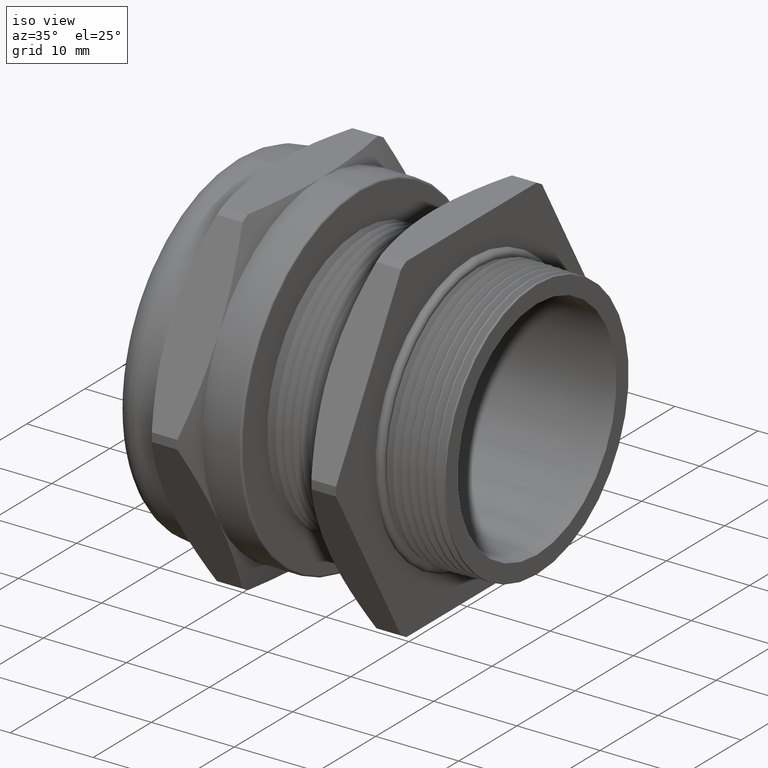
[diagram: clean part render]
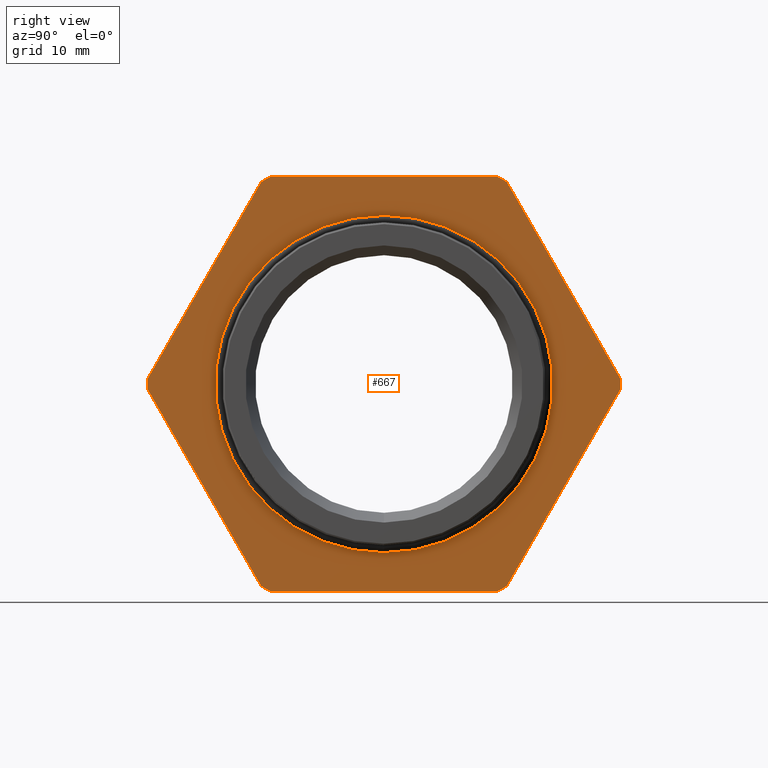
[diagram: tour spotlight — one face highlighted and labeled with its STEP entity id]
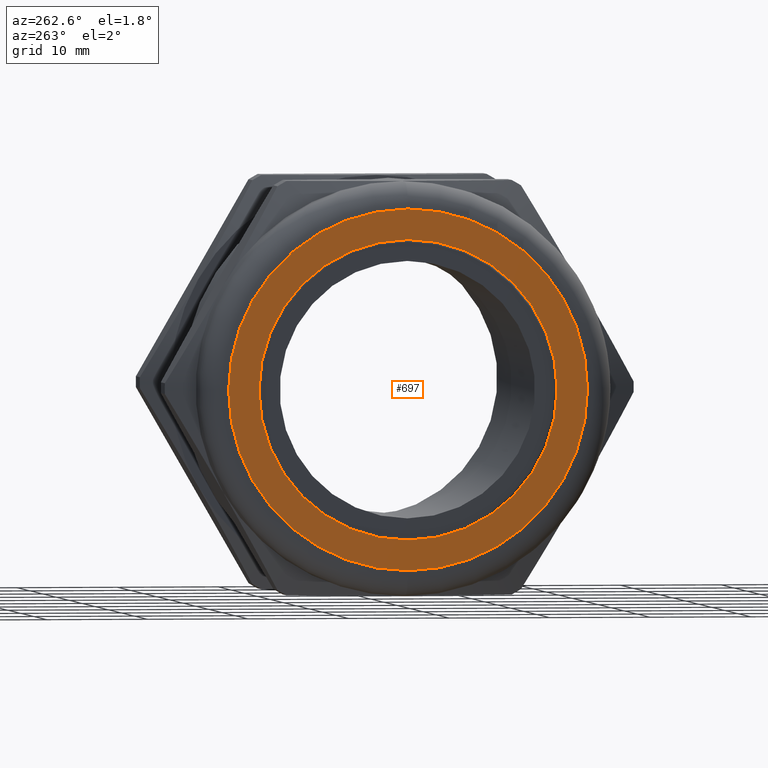
[diagram: tour spotlight — one face highlighted and labeled with its STEP entity id]
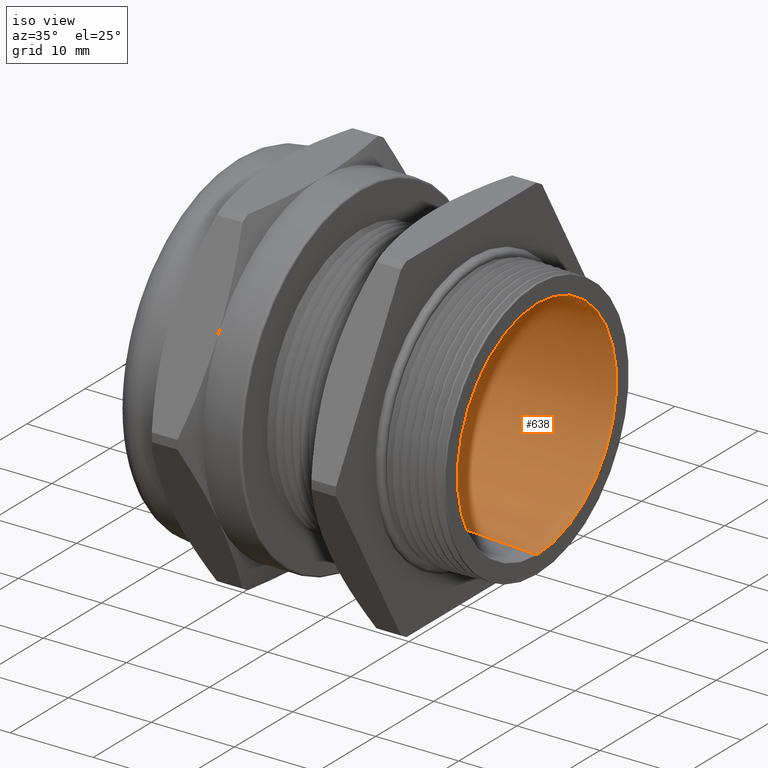
[diagram: tour spotlight — one face highlighted and labeled with its STEP entity id]
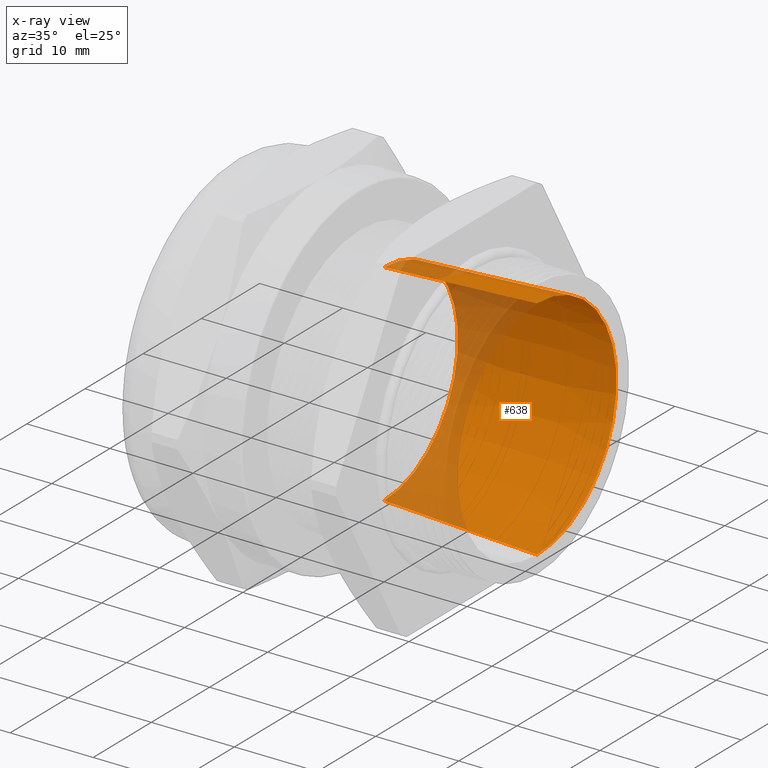
[diagram: x-ray of the same camera — body ghosted, this tour face saturated]
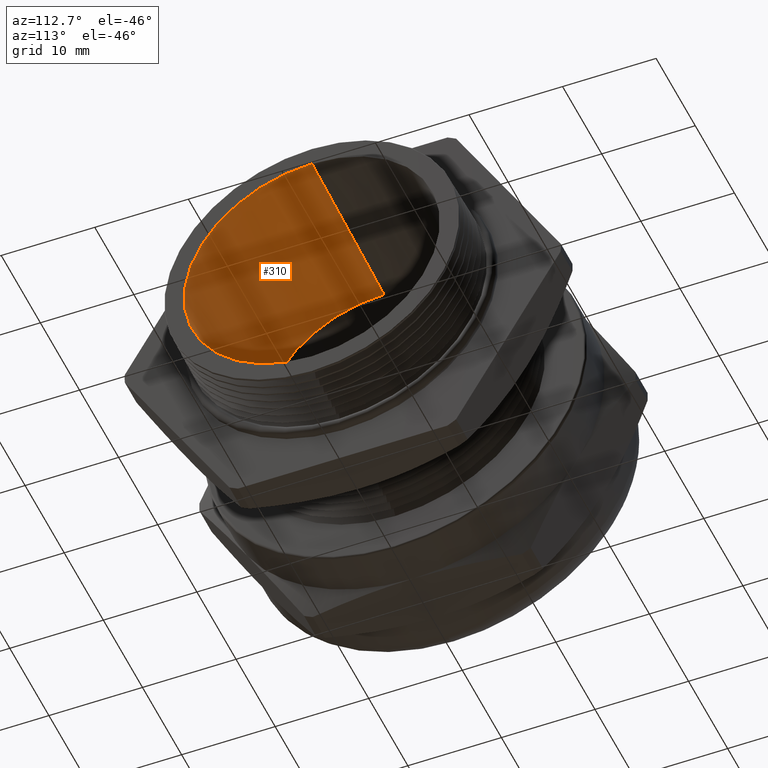
[diagram: tour spotlight — one face highlighted and labeled with its STEP entity id]
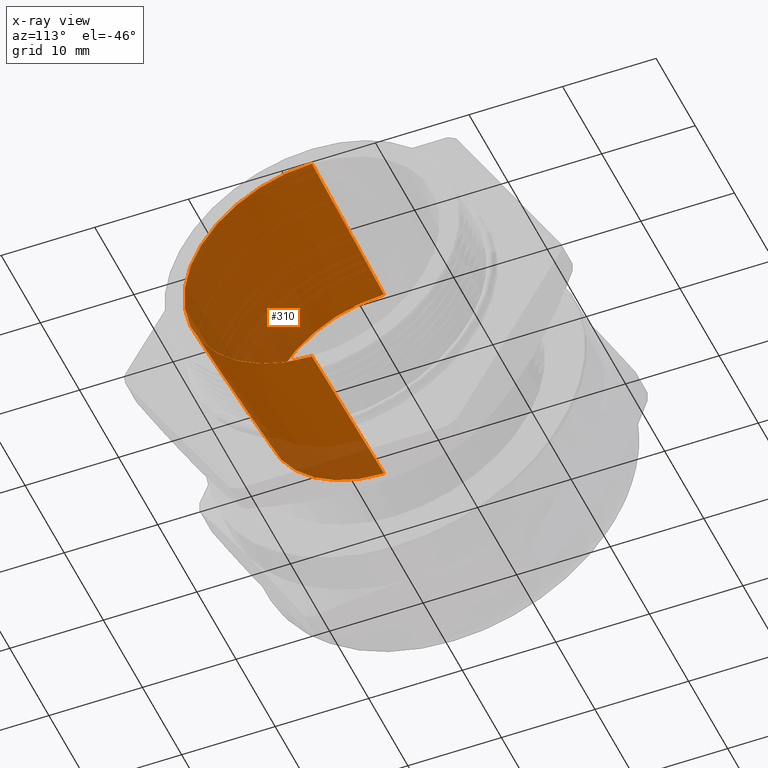
[diagram: x-ray of the same camera — body ghosted, this tour face saturated]
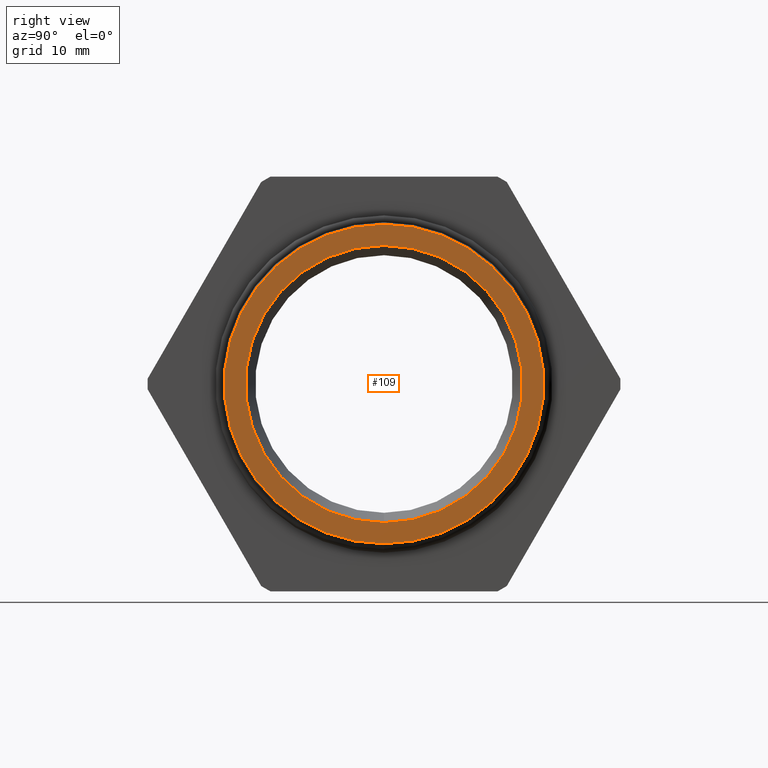
[diagram: tour spotlight — one face highlighted and labeled with its STEP entity id]
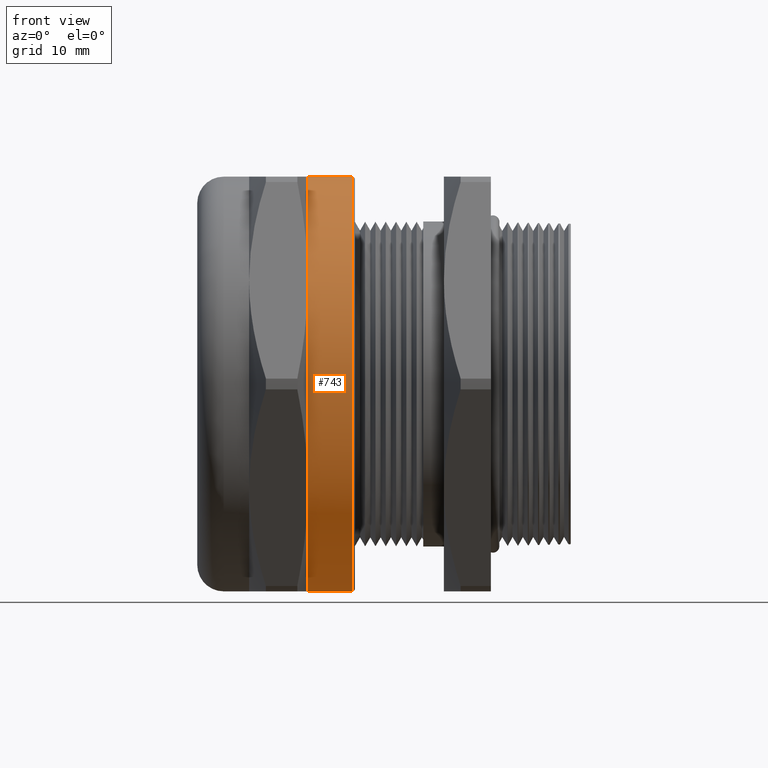
[diagram: tour spotlight — one face highlighted and labeled with its STEP entity id]
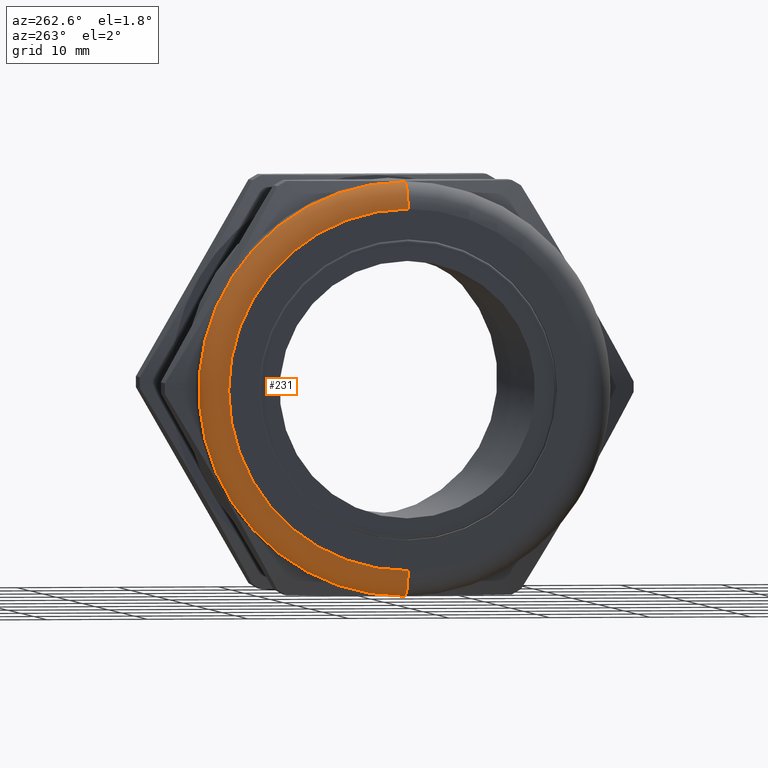
[diagram: tour spotlight — one face highlighted and labeled with its STEP entity id]
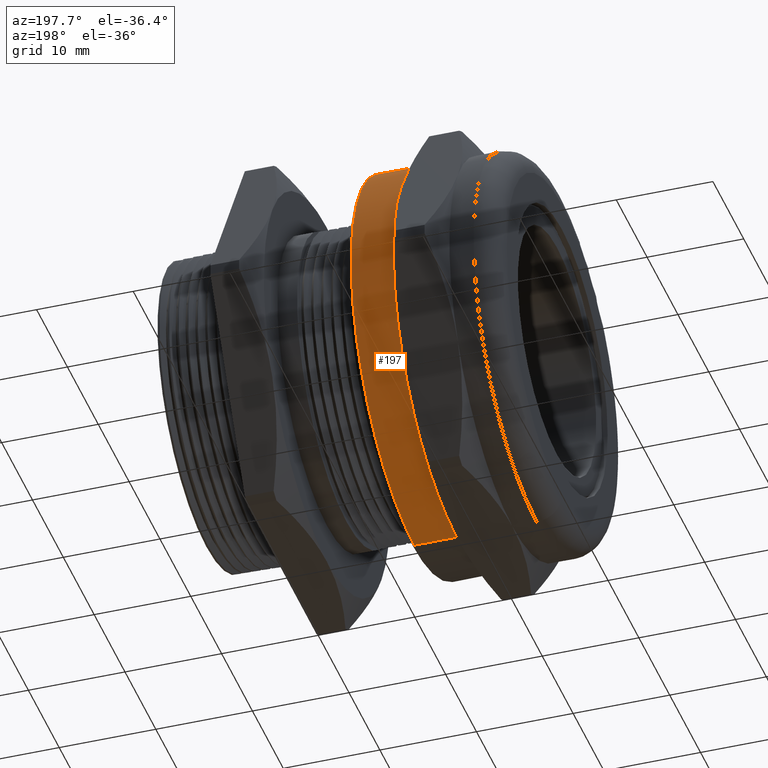
[diagram: tour spotlight — one face highlighted and labeled with its STEP entity id]
A machine part: a face-by-face anatomy tour. The part has 152 B-rep faces; the first image is the clean iso view, then the 8 largest visible faces are spotlighted one at a time (largest first), each with its STEP entity span.

Face 1 — right view, entity #667. In plain terms, the highlighted planar face has unit normal (-1, 0, 0).
Definition (entity closure, byte-faithful):
#5 = EDGE_CURVE ( 'NONE', #4247, #4260, #1312, .T. ) ;
#18 = EDGE_CURVE ( 'NONE', #4231, #285, #1329, .T. ) ;
#33 = EDGE_CURVE ( 'NONE', #4246, #4230, #1405, .T. ) ;
#45 = EDGE_CURVE ( 'NONE', #4215, #4221, #1423, .T. ) ;
#51 = EDGE_CURVE ( 'NONE', #4232, #4244, #1460, .T. ) ;
#285 = VERTEX_POINT ( 'NONE', #1928 ) ;
#290 = EDGE_CURVE ( 'NONE', #4267, #4210, #1915, .T. ) ;
#637 = ORIENTED_EDGE ( 'NONE', *, *, #4213, .F. ) ;
#649 = ORIENTED_EDGE ( 'NONE', *, *, #4229, .F. ) ;
#650 = ORIENTED_EDGE ( 'NONE', *, *, #51, .T. ) ;
#651 = ORIENTED_EDGE ( 'NONE', *, *, #4248, .F. ) ;
#652 = ORIENTED_EDGE ( 'NONE', *, *, #33, .T. ) ;
#653 = ORIENTED_EDGE ( 'NONE', *, *, #4261, .F. ) ;
#654 = ORIENTED_EDGE ( 'NONE', *, *, #18, .T. ) ;
#655 = ORIENTED_EDGE ( 'NONE', *, *, #4250, .F. ) ;
#657 = ORIENTED_EDGE ( 'NONE', *, *, #5, .T. ) ;
#658 = ORIENTED_EDGE ( 'NONE', *, *, #4264, .F. ) ;
#659 = ORIENTED_EDGE ( 'NONE', *, *, #290, .T. ) ;
#667 = ADVANCED_FACE ( 'NONE', ( #2729, #2731 ), #2719, .F. ) ;
#668 = EDGE_LOOP ( 'NONE', ( #669, #671 ) ) ;
#669 = ORIENTED_EDGE ( 'NONE', *, *, #670, .T. ) ;
#670 = EDGE_CURVE ( 'NONE', #1206, #1146, #2714, .T. ) ;
#671 = ORIENTED_EDGE ( 'NONE', *, *, #1205, .T. ) ;
#672 = EDGE_LOOP ( 'NONE', ( #673, #649, #650, #651, #652, #653, #654, #655, #657, #658, #659, #637 ) ) ;
#673 = ORIENTED_EDGE ( 'NONE', *, *, #45, .T. ) ;
#1146 = VERTEX_POINT ( 'NONE', #3404 ) ;
#1205 = EDGE_CURVE ( 'NONE', #1146, #1206, #3486, .T. ) ;
#1206 = VERTEX_POINT ( 'NONE', #3481 ) ;
#1303 = DIRECTION ( 'NONE',  ( 0.0000000000000000000, -0.5000000000000000000, 0.8660254037844386000 ) ) ;
#1304 = VECTOR ( 'NONE', #1303, 39.37007874015748900 ) ;
#1311 = CARTESIAN_POINT ( 'NONE',  ( 0.4149999999999998700, 0.9174617581992775600, 0.02090962079737901700 ) ) ;
#1312 = LINE ( 'NONE', #1311, #1304 ) ;
#1322 = DIRECTION ( 'NONE',  ( 0.0000000000000000000, 0.5000000000000000000, 0.8660254037844386000 ) ) ;
#1323 = VECTOR ( 'NONE', #1322, 39.37007874015748900 ) ;
#1324 = CARTESIAN_POINT ( 'NONE',  ( 0.4149999999999998700, 0.4768391418936687200, -0.7840903792026208100 ) ) ;
#1329 = LINE ( 'NONE', #1324, #1323 ) ;
#1396 = DIRECTION ( 'NONE',  ( 0.0000000000000000000, 1.000000000000000000, 0.0000000000000000000 ) ) ;
#1397 = VECTOR ( 'NONE', #1396, 39.37007874015748100 ) ;
#1404 = CARTESIAN_POINT ( 'NONE',  ( 0.4149999999999998700, -0.4406226163056090600, -0.8050000000000000500 ) ) ;
#1405 = LINE ( 'NONE', #1404, #1397 ) ;
#1412 = VECTOR ( 'NONE', #1421, 39.37007874015748900 ) ;
#1421 = DIRECTION ( 'NONE',  ( 0.0000000000000000000, -0.5000000000000001100, -0.8660254037844386000 ) ) ;
#1422 = CARTESIAN_POINT ( 'NONE',  ( 0.4149999999999998700, -0.4768391418936684400, 0.7840903792026209200 ) ) ;
#1423 = LINE ( 'NONE', #1422, #1412 ) ;
#1457 = DIRECTION ( 'NONE',  ( 0.0000000000000000000, 0.5000000000000001100, -0.8660254037844386000 ) ) ;
#1458 = VECTOR ( 'NONE', #1457, 39.37007874015748900 ) ;
#1459 = CARTESIAN_POINT ( 'NONE',  ( 0.4149999999999998700, -0.9174617581992775600, -0.02090962079737935700 ) ) ;
#1460 = LINE ( 'NONE', #1459, #1458 ) ;
#1912 = DIRECTION ( 'NONE',  ( 0.0000000000000000000, -1.000000000000000000, 0.0000000000000000000 ) ) ;
#1913 = VECTOR ( 'NONE', #1912, 39.37007874015748100 ) ;
#1914 = CARTESIAN_POINT ( 'NONE',  ( 0.4149999999999998700, 0.4406226163056091200, 0.8050000000000000500 ) ) ;
#1915 = LINE ( 'NONE', #1914, #1913 ) ;
#1928 = CARTESIAN_POINT ( 'NONE',  ( 0.4149999999999998100, 0.9174617581992775600, -0.02090962079737942700 ) ) ;
#2711 = DIRECTION ( 'NONE',  ( 0.0000000000000000000, 0.0000000000000000000, 1.000000000000000000 ) ) ;
#2712 = DIRECTION ( 'NONE',  ( -1.000000000000000000, 0.0000000000000000000, 0.0000000000000000000 ) ) ;
#2713 = AXIS2_PLACEMENT_3D ( 'NONE', #2720, #2712, #2711 ) ;
#2714 = CIRCLE ( 'NONE', #2713, 0.6534759511921007800 ) ;
#2715 = DIRECTION ( 'NONE',  ( 0.0000000000000000000, 0.0000000000000000000, 1.000000000000000000 ) ) ;
#2716 = DIRECTION ( 'NONE',  ( -1.000000000000000000, 0.0000000000000000000, 0.0000000000000000000 ) ) ;
#2717 = CARTESIAN_POINT ( 'NONE',  ( 0.4149999999999998700, 0.9177000000000000700, 0.0000000000000000000 ) ) ;
#2718 = AXIS2_PLACEMENT_3D ( 'NONE', #2717, #2716, #2715 ) ;
#2719 = PLANE ( 'NONE',  #2718 ) ;
#2720 = CARTESIAN_POINT ( 'NONE',  ( 0.4149999999999998700, 0.0000000000000000000, 0.0000000000000000000 ) ) ;
#2729 = FACE_BOUND ( 'NONE', #668, .T. ) ;
#2731 = FACE_OUTER_BOUND ( 'NONE', #672, .T. ) ;
#3404 = CARTESIAN_POINT ( 'NONE',  ( 0.4149999999999998700, 8.002772319471780800E-017, 0.6534759511921007800 ) ) ;
#3481 = CARTESIAN_POINT ( 'NONE',  ( 0.4149999999999998700, 0.0000000000000000000, -0.6534759511921007800 ) ) ;
#3482 = DIRECTION ( 'NONE',  ( 0.0000000000000000000, 0.0000000000000000000, 1.000000000000000000 ) ) ;
#3483 = DIRECTION ( 'NONE',  ( -1.000000000000000000, 0.0000000000000000000, 0.0000000000000000000 ) ) ;
#3484 = CARTESIAN_POINT ( 'NONE',  ( 0.4149999999999998700, 0.0000000000000000000, 0.0000000000000000000 ) ) ;
#3485 = AXIS2_PLACEMENT_3D ( 'NONE', #3484, #3483, #3482 ) ;
#3486 = CIRCLE ( 'NONE', #3485, 0.6534759511921007800 ) ;
#3914 = CARTESIAN_POINT ( 'NONE',  ( 0.4149999999999998700, -0.4768391418936682200, 0.7840903792026209200 ) ) ;
#3915 = DIRECTION ( 'NONE',  ( 0.0000000000000000000, 0.0000000000000000000, 1.000000000000000000 ) ) ;
#3916 = DIRECTION ( 'NONE',  ( -1.000000000000000000, 0.0000000000000000000, 0.0000000000000000000 ) ) ;
#3917 = CARTESIAN_POINT ( 'NONE',  ( 0.4149999999999998100, 0.0000000000000000000, 0.0000000000000000000 ) ) ;
#3918 = AXIS2_PLACEMENT_3D ( 'NONE', #3917, #3916, #3915 ) ;
#3919 = CIRCLE ( 'NONE', #3918, 0.9177000000000000700 ) ;
#3924 = CARTESIAN_POINT ( 'NONE',  ( 0.4149999999999998100, -0.4406226163056091200, 0.8050000000000000500 ) ) ;
#3944 = CARTESIAN_POINT ( 'NONE',  ( 0.4149999999999998700, -0.9174617581992775600, -0.02090962079737928100 ) ) ;
#3945 = CARTESIAN_POINT ( 'NONE',  ( 0.4149999999999998700, 0.4768391418936687200, -0.7840903792026208100 ) ) ;
#3946 = CARTESIAN_POINT ( 'NONE',  ( 0.4149999999999998100, 0.4406226163056090600, -0.8050000000000000500 ) ) ;
#3947 = DIRECTION ( 'NONE',  ( 0.0000000000000000000, 0.0000000000000000000, 1.000000000000000000 ) ) ;
#3948 = DIRECTION ( 'NONE',  ( -1.000000000000000000, 0.0000000000000000000, 0.0000000000000000000 ) ) ;
#3949 = CARTESIAN_POINT ( 'NONE',  ( 0.4149999999999998100, 0.0000000000000000000, 0.0000000000000000000 ) ) ;
#3950 = AXIS2_PLACEMENT_3D ( 'NONE', #3949, #3948, #3947 ) ;
#3951 = CIRCLE ( 'NONE', #3950, 0.9177000000000000700 ) ;
#3962 = CARTESIAN_POINT ( 'NONE',  ( 0.4149999999999998100, -0.9174617581992775600, 0.02090962079737922200 ) ) ;
#3970 = DIRECTION ( 'NONE',  ( 0.0000000000000000000, 0.0000000000000000000, 1.000000000000000000 ) ) ;
#3971 = DIRECTION ( 'NONE',  ( -1.000000000000000000, 0.0000000000000000000, 0.0000000000000000000 ) ) ;
#3972 = CARTESIAN_POINT ( 'NONE',  ( 0.4149999999999998100, 0.0000000000000000000, 0.0000000000000000000 ) ) ;
#3973 = AXIS2_PLACEMENT_3D ( 'NONE', #3972, #3971, #3970 ) ;
#3974 = CIRCLE ( 'NONE', #3973, 0.9177000000000000700 ) ;
#3975 = DIRECTION ( 'NONE',  ( 0.0000000000000000000, 0.0000000000000000000, 1.000000000000000000 ) ) ;
#3976 = DIRECTION ( 'NONE',  ( -1.000000000000000000, 0.0000000000000000000, 0.0000000000000000000 ) ) ;
#3977 = CARTESIAN_POINT ( 'NONE',  ( 0.4149999999999998100, 0.0000000000000000000, 0.0000000000000000000 ) ) ;
#3978 = AXIS2_PLACEMENT_3D ( 'NONE', #3977, #3976, #3975 ) ;
#3979 = CIRCLE ( 'NONE', #3978, 0.9177000000000000700 ) ;
#3980 = CARTESIAN_POINT ( 'NONE',  ( 0.4149999999999998700, 0.9174617581992775600, 0.02090962079737898300 ) ) ;
#3981 = CARTESIAN_POINT ( 'NONE',  ( 0.4149999999999998700, -0.4406226163056092300, -0.8050000000000000500 ) ) ;
#3982 = CARTESIAN_POINT ( 'NONE',  ( 0.4149999999999998100, -0.4768391418936683800, -0.7840903792026210400 ) ) ;
#4003 = AXIS2_PLACEMENT_3D ( 'NONE', #4063, #4062, #4061 ) ;
#4004 = CIRCLE ( 'NONE', #4003, 0.9177000000000000700 ) ;
#4009 = DIRECTION ( 'NONE',  ( 0.0000000000000000000, 0.0000000000000000000, 1.000000000000000000 ) ) ;
#4010 = DIRECTION ( 'NONE',  ( -1.000000000000000000, 0.0000000000000000000, 0.0000000000000000000 ) ) ;
#4011 = CARTESIAN_POINT ( 'NONE',  ( 0.4149999999999998100, 0.0000000000000000000, 0.0000000000000000000 ) ) ;
#4012 = AXIS2_PLACEMENT_3D ( 'NONE', #4011, #4010, #4009 ) ;
#4013 = CIRCLE ( 'NONE', #4012, 0.9177000000000000700 ) ;
#4014 = CARTESIAN_POINT ( 'NONE',  ( 0.4149999999999998100, 0.4768391418936684400, 0.7840903792026209200 ) ) ;
#4056 = CARTESIAN_POINT ( 'NONE',  ( 0.4149999999999998700, 0.4406226163056091200, 0.8050000000000000500 ) ) ;
#4061 = DIRECTION ( 'NONE',  ( 0.0000000000000000000, 0.0000000000000000000, 1.000000000000000000 ) ) ;
#4062 = DIRECTION ( 'NONE',  ( -1.000000000000000000, 0.0000000000000000000, 0.0000000000000000000 ) ) ;
#4063 = CARTESIAN_POINT ( 'NONE',  ( 0.4149999999999998100, 0.0000000000000000000, 0.0000000000000000000 ) ) ;
#4210 = VERTEX_POINT ( 'NONE', #3924 ) ;
#4213 = EDGE_CURVE ( 'NONE', #4215, #4210, #3919, .T. ) ;
#4215 = VERTEX_POINT ( 'NONE', #3914 ) ;
#4221 = VERTEX_POINT ( 'NONE', #3962 ) ;
#4229 = EDGE_CURVE ( 'NONE', #4232, #4221, #3951, .T. ) ;
#4230 = VERTEX_POINT ( 'NONE', #3946 ) ;
#4231 = VERTEX_POINT ( 'NONE', #3945 ) ;
#4232 = VERTEX_POINT ( 'NONE', #3944 ) ;
#4244 = VERTEX_POINT ( 'NONE', #3982 ) ;
#4246 = VERTEX_POINT ( 'NONE', #3981 ) ;
#4247 = VERTEX_POINT ( 'NONE', #3980 ) ;
#4248 = EDGE_CURVE ( 'NONE', #4246, #4244, #3979, .T. ) ;
#4250 = EDGE_CURVE ( 'NONE', #4247, #285, #3974, .T. ) ;
#4260 = VERTEX_POINT ( 'NONE', #4014 ) ;
#4261 = EDGE_CURVE ( 'NONE', #4231, #4230, #4013, .T. ) ;
#4264 = EDGE_CURVE ( 'NONE', #4267, #4260, #4004, .T. ) ;
#4267 = VERTEX_POINT ( 'NONE', #4056 ) ;

Face 2 — auxiliary view, entity #697. In plain terms, the highlighted planar face has unit normal (1, 0, 0).
Definition (entity closure, byte-faithful):
#134 = EDGE_CURVE ( 'NONE', #135, #136, #1614, .T. ) ;
#135 = VERTEX_POINT ( 'NONE', #1609 ) ;
#136 = VERTEX_POINT ( 'NONE', #1608 ) ;
#270 = VERTEX_POINT ( 'NONE', #1881 ) ;
#299 = VERTEX_POINT ( 'NONE', #1970 ) ;
#300 = EDGE_CURVE ( 'NONE', #270, #299, #1968, .T. ) ;
#679 = ORIENTED_EDGE ( 'NONE', *, *, #300, .F. ) ;
#696 = EDGE_CURVE ( 'NONE', #299, #270, #2792, .T. ) ;
#697 = ADVANCED_FACE ( 'NONE', ( #2788, #2787 ), #2785, .F. ) ;
#698 = EDGE_LOOP ( 'NONE', ( #699, #701 ) ) ;
#699 = ORIENTED_EDGE ( 'NONE', *, *, #700, .T. ) ;
#700 = EDGE_CURVE ( 'NONE', #136, #135, #2780, .T. ) ;
#701 = ORIENTED_EDGE ( 'NONE', *, *, #134, .T. ) ;
#702 = EDGE_LOOP ( 'NONE', ( #703, #679 ) ) ;
#703 = ORIENTED_EDGE ( 'NONE', *, *, #696, .F. ) ;
#1608 = CARTESIAN_POINT ( 'NONE',  ( -0.7249999999999998700, 0.0000000000000000000, -0.7024000000000000200 ) ) ;
#1609 = CARTESIAN_POINT ( 'NONE',  ( -0.7249999999999998700, 9.230162925173601500E-017, 0.7024000000000000200 ) ) ;
#1610 = DIRECTION ( 'NONE',  ( 0.0000000000000000000, 0.0000000000000000000, -1.000000000000000000 ) ) ;
#1611 = DIRECTION ( 'NONE',  ( -1.000000000000000000, 0.0000000000000000000, 0.0000000000000000000 ) ) ;
#1612 = CARTESIAN_POINT ( 'NONE',  ( -0.7249999999999998700, 0.0000000000000000000, 0.0000000000000000000 ) ) ;
#1613 = AXIS2_PLACEMENT_3D ( 'NONE', #1612, #1611, #1610 ) ;
#1614 = CIRCLE ( 'NONE', #1613, 0.7024000000000000200 ) ;
#1881 = CARTESIAN_POINT ( 'NONE',  ( -0.7250000000000000900, 7.147344881523741700E-017, -0.5836250000000001700 ) ) ;
#1964 = DIRECTION ( 'NONE',  ( 0.0000000000000000000, 0.0000000000000000000, 1.000000000000000000 ) ) ;
#1965 = DIRECTION ( 'NONE',  ( -1.000000000000000000, 0.0000000000000000000, 0.0000000000000000000 ) ) ;
#1966 = CARTESIAN_POINT ( 'NONE',  ( -0.7250000000000000900, 0.0000000000000000000, 0.0000000000000000000 ) ) ;
#1967 = AXIS2_PLACEMENT_3D ( 'NONE', #1966, #1965, #1964 ) ;
#1968 = CIRCLE ( 'NONE', #1967, 0.5836250000000000600 ) ;
#1970 = CARTESIAN_POINT ( 'NONE',  ( -0.7250000000000000900, 0.0000000000000000000, 0.5836250000000000600 ) ) ;
#2776 = DIRECTION ( 'NONE',  ( 0.0000000000000000000, 0.0000000000000000000, -1.000000000000000000 ) ) ;
#2777 = DIRECTION ( 'NONE',  ( -1.000000000000000000, 0.0000000000000000000, 0.0000000000000000000 ) ) ;
#2778 = CARTESIAN_POINT ( 'NONE',  ( -0.7249999999999998700, 0.0000000000000000000, 0.0000000000000000000 ) ) ;
#2779 = AXIS2_PLACEMENT_3D ( 'NONE', #2778, #2777, #2776 ) ;
#2780 = CIRCLE ( 'NONE', #2779, 0.7024000000000000200 ) ;
#2781 = DIRECTION ( 'NONE',  ( 0.0000000000000000000, 0.0000000000000000000, -1.000000000000000000 ) ) ;
#2782 = DIRECTION ( 'NONE',  ( 1.000000000000000000, 0.0000000000000000000, 0.0000000000000000000 ) ) ;
#2783 = CARTESIAN_POINT ( 'NONE',  ( -0.7249999999999998700, 0.5836250000000000600, 0.0000000000000000000 ) ) ;
#2784 = AXIS2_PLACEMENT_3D ( 'NONE', #2783, #2782, #2781 ) ;
#2785 = PLANE ( 'NONE',  #2784 ) ;
#2787 = FACE_BOUND ( 'NONE', #702, .T. ) ;
#2788 = FACE_OUTER_BOUND ( 'NONE', #698, .T. ) ;
#2789 = DIRECTION ( 'NONE',  ( 0.0000000000000000000, 0.0000000000000000000, 1.000000000000000000 ) ) ;
#2790 = DIRECTION ( 'NONE',  ( -1.000000000000000000, 0.0000000000000000000, 0.0000000000000000000 ) ) ;
#2791 = AXIS2_PLACEMENT_3D ( 'NONE', #2797, #2790, #2789 ) ;
#2792 = CIRCLE ( 'NONE', #2791, 0.5836250000000000600 ) ;
#2797 = CARTESIAN_POINT ( 'NONE',  ( -0.7250000000000000900, 0.0000000000000000000, 0.0000000000000000000 ) ) ;

Face 3 — iso view, entity #638. An x-ray twin of the same camera follows (body ghosted, this face saturated) — the face is partly hidden behind the body. In plain terms, the highlighted conical surface has half-angle 3 deg.
Definition (entity closure, byte-faithful):
#40 = VERTEX_POINT ( 'NONE', #1430 ) ;
#112 = EDGE_CURVE ( 'NONE', #281, #40, #1593, .T. ) ;
#281 = VERTEX_POINT ( 'NONE', #1929 ) ;
#286 = VERTEX_POINT ( 'NONE', #1927 ) ;
#309 = EDGE_CURVE ( 'NONE', #286, #281, #1438, .T. ) ;
#312 = VERTEX_POINT ( 'NONE', #1991 ) ;
#320 = EDGE_CURVE ( 'NONE', #312, #40, #1974, .T. ) ;
#638 = ADVANCED_FACE ( 'NONE', ( #2646 ), #2642, .F. ) ;
#639 = ORIENTED_EDGE ( 'NONE', *, *, #309, .F. ) ;
#640 = ORIENTED_EDGE ( 'NONE', *, *, #641, .T. ) ;
#641 = EDGE_CURVE ( 'NONE', #286, #312, #2695, .T. ) ;
#642 = ORIENTED_EDGE ( 'NONE', *, *, #320, .T. ) ;
#643 = ORIENTED_EDGE ( 'NONE', *, *, #112, .F. ) ;
#660 = EDGE_LOOP ( 'NONE', ( #639, #640, #642, #643 ) ) ;
#1430 = CARTESIAN_POINT ( 'NONE',  ( 0.7249999999999995300, 0.0000000000000000000, -0.5379956399802052800 ) ) ;
#1435 = VECTOR ( 'NONE', #1706, 39.37007874015748900 ) ;
#1436 = CARTESIAN_POINT ( 'NONE',  ( 0.0000000000000000000, 6.123233995736766000E-017, 0.5000000000000000000 ) ) ;
#1438 = LINE ( 'NONE', #1436, #1435 ) ;
#1589 = DIRECTION ( 'NONE',  ( 0.0000000000000000000, 0.0000000000000000000, 1.000000000000000000 ) ) ;
#1590 = DIRECTION ( 'NONE',  ( -1.000000000000000000, 0.0000000000000000000, 0.0000000000000000000 ) ) ;
#1591 = CARTESIAN_POINT ( 'NONE',  ( 0.7249999999999995300, 0.0000000000000000000, 0.0000000000000000000 ) ) ;
#1592 = AXIS2_PLACEMENT_3D ( 'NONE', #1591, #1590, #1589 ) ;
#1593 = CIRCLE ( 'NONE', #1592, 0.5379956399802052800 ) ;
#1706 = DIRECTION ( 'NONE',  ( 0.9986295347545738300, 6.409306129323784100E-018, 0.05233595624294443800 ) ) ;
#1927 = CARTESIAN_POINT ( 'NONE',  ( 0.0000000000000000000, 6.355890190153334100E-017, 0.5000000000000000000 ) ) ;
#1929 = CARTESIAN_POINT ( 'NONE',  ( 0.7249999999999995300, 6.588546384569902100E-017, 0.5379956399802052800 ) ) ;
#1974 = LINE ( 'NONE', #2032, #2031 ) ;
#1991 = CARTESIAN_POINT ( 'NONE',  ( 0.0000000000000000000, 0.0000000000000000000, -0.5000000000000000000 ) ) ;
#2030 = DIRECTION ( 'NONE',  ( 0.9986295347545738300, 0.0000000000000000000, -0.05233595624294443800 ) ) ;
#2031 = VECTOR ( 'NONE', #2030, 39.37007874015748900 ) ;
#2032 = CARTESIAN_POINT ( 'NONE',  ( 0.0000000000000000000, 0.0000000000000000000, -0.5000000000000000000 ) ) ;
#2642 = CONICAL_SURFACE ( 'NONE', #2699, 0.5000000000000000000, 0.05235987755983049400 ) ;
#2646 = FACE_OUTER_BOUND ( 'NONE', #660, .T. ) ;
#2691 = DIRECTION ( 'NONE',  ( 0.0000000000000000000, 0.0000000000000000000, 1.000000000000000000 ) ) ;
#2692 = DIRECTION ( 'NONE',  ( -1.000000000000000000, 0.0000000000000000000, 0.0000000000000000000 ) ) ;
#2693 = CARTESIAN_POINT ( 'NONE',  ( 0.0000000000000000000, 0.0000000000000000000, 0.0000000000000000000 ) ) ;
#2694 = AXIS2_PLACEMENT_3D ( 'NONE', #2693, #2692, #2691 ) ;
#2695 = CIRCLE ( 'NONE', #2694, 0.5000000000000000000 ) ;
#2696 = DIRECTION ( 'NONE',  ( 0.0000000000000000000, 0.0000000000000000000, -1.000000000000000000 ) ) ;
#2697 = DIRECTION ( 'NONE',  ( 1.000000000000000000, 0.0000000000000000000, 0.0000000000000000000 ) ) ;
#2698 = CARTESIAN_POINT ( 'NONE',  ( 0.0000000000000000000, 0.0000000000000000000, 0.0000000000000000000 ) ) ;
#2699 = AXIS2_PLACEMENT_3D ( 'NONE', #2698, #2697, #2696 ) ;

Face 4 — auxiliary view, entity #310. An x-ray twin of the same camera follows (body ghosted, this face saturated) — the face is partly hidden behind the body. In plain terms, the highlighted conical surface has half-angle 3 deg.
Definition (entity closure, byte-faithful):
#40 = VERTEX_POINT ( 'NONE', #1430 ) ;
#42 = EDGE_CURVE ( 'NONE', #40, #281, #1429, .T. ) ;
#279 = ORIENTED_EDGE ( 'NONE', *, *, #42, .F. ) ;
#281 = VERTEX_POINT ( 'NONE', #1929 ) ;
#282 = EDGE_LOOP ( 'NONE', ( #284, #283, #279, #321 ) ) ;
#283 = ORIENTED_EDGE ( 'NONE', *, *, #309, .T. ) ;
#284 = ORIENTED_EDGE ( 'NONE', *, *, #318, .T. ) ;
#286 = VERTEX_POINT ( 'NONE', #1927 ) ;
#309 = EDGE_CURVE ( 'NONE', #286, #281, #1438, .T. ) ;
#310 = ADVANCED_FACE ( 'NONE', ( #2001 ), #2000, .F. ) ;
#312 = VERTEX_POINT ( 'NONE', #1991 ) ;
#318 = EDGE_CURVE ( 'NONE', #312, #286, #1981, .T. ) ;
#320 = EDGE_CURVE ( 'NONE', #312, #40, #1974, .T. ) ;
#321 = ORIENTED_EDGE ( 'NONE', *, *, #320, .F. ) ;
#1425 = DIRECTION ( 'NONE',  ( 0.0000000000000000000, 0.0000000000000000000, 1.000000000000000000 ) ) ;
#1426 = DIRECTION ( 'NONE',  ( -1.000000000000000000, 0.0000000000000000000, 0.0000000000000000000 ) ) ;
#1427 = CARTESIAN_POINT ( 'NONE',  ( 0.7249999999999995300, 0.0000000000000000000, 0.0000000000000000000 ) ) ;
#1428 = AXIS2_PLACEMENT_3D ( 'NONE', #1427, #1426, #1425 ) ;
#1429 = CIRCLE ( 'NONE', #1428, 0.5379956399802052800 ) ;
#1430 = CARTESIAN_POINT ( 'NONE',  ( 0.7249999999999995300, 0.0000000000000000000, -0.5379956399802052800 ) ) ;
#1435 = VECTOR ( 'NONE', #1706, 39.37007874015748900 ) ;
#1436 = CARTESIAN_POINT ( 'NONE',  ( 0.0000000000000000000, 6.123233995736766000E-017, 0.5000000000000000000 ) ) ;
#1438 = LINE ( 'NONE', #1436, #1435 ) ;
#1706 = DIRECTION ( 'NONE',  ( 0.9986295347545738300, 6.409306129323784100E-018, 0.05233595624294443800 ) ) ;
#1927 = CARTESIAN_POINT ( 'NONE',  ( 0.0000000000000000000, 6.355890190153334100E-017, 0.5000000000000000000 ) ) ;
#1929 = CARTESIAN_POINT ( 'NONE',  ( 0.7249999999999995300, 6.588546384569902100E-017, 0.5379956399802052800 ) ) ;
#1974 = LINE ( 'NONE', #2032, #2031 ) ;
#1977 = DIRECTION ( 'NONE',  ( 0.0000000000000000000, 0.0000000000000000000, 1.000000000000000000 ) ) ;
#1978 = DIRECTION ( 'NONE',  ( -1.000000000000000000, 0.0000000000000000000, 0.0000000000000000000 ) ) ;
#1979 = CARTESIAN_POINT ( 'NONE',  ( 0.0000000000000000000, 0.0000000000000000000, 0.0000000000000000000 ) ) ;
#1980 = AXIS2_PLACEMENT_3D ( 'NONE', #1979, #1978, #1977 ) ;
#1981 = CIRCLE ( 'NONE', #1980, 0.5000000000000000000 ) ;
#1991 = CARTESIAN_POINT ( 'NONE',  ( 0.0000000000000000000, 0.0000000000000000000, -0.5000000000000000000 ) ) ;
#1995 = DIRECTION ( 'NONE',  ( 0.0000000000000000000, 0.0000000000000000000, -1.000000000000000000 ) ) ;
#1996 = DIRECTION ( 'NONE',  ( 1.000000000000000000, 0.0000000000000000000, 0.0000000000000000000 ) ) ;
#1997 = AXIS2_PLACEMENT_3D ( 'NONE', #1999, #1996, #1995 ) ;
#1999 = CARTESIAN_POINT ( 'NONE',  ( 0.0000000000000000000, 0.0000000000000000000, 0.0000000000000000000 ) ) ;
#2000 = CONICAL_SURFACE ( 'NONE', #1997, 0.5000000000000000000, 0.05235987755983049400 ) ;
#2001 = FACE_OUTER_BOUND ( 'NONE', #282, .T. ) ;
#2030 = DIRECTION ( 'NONE',  ( 0.9986295347545738300, 0.0000000000000000000, -0.05233595624294443800 ) ) ;
#2031 = VECTOR ( 'NONE', #2030, 39.37007874015748900 ) ;
#2032 = CARTESIAN_POINT ( 'NONE',  ( 0.0000000000000000000, 0.0000000000000000000, -0.5000000000000000000 ) ) ;

Face 5 — right view, entity #109. In plain terms, the highlighted planar face has unit normal (-1, 0, 0).
Definition (entity closure, byte-faithful):
#40 = VERTEX_POINT ( 'NONE', #1430 ) ;
#42 = EDGE_CURVE ( 'NONE', #40, #281, #1429, .T. ) ;
#80 = EDGE_LOOP ( 'NONE', ( #111, #113 ) ) ;
#103 = EDGE_CURVE ( 'NONE', #1177, #1379, #1557, .T. ) ;
#105 = ORIENTED_EDGE ( 'NONE', *, *, #1252, .F. ) ;
#106 = ORIENTED_EDGE ( 'NONE', *, *, #103, .F. ) ;
#108 = EDGE_LOOP ( 'NONE', ( #105, #106 ) ) ;
#109 = ADVANCED_FACE ( 'NONE', ( #1544, #1539 ), #1538, .F. ) ;
#111 = ORIENTED_EDGE ( 'NONE', *, *, #42, .T. ) ;
#112 = EDGE_CURVE ( 'NONE', #281, #40, #1593, .T. ) ;
#113 = ORIENTED_EDGE ( 'NONE', *, *, #112, .T. ) ;
#281 = VERTEX_POINT ( 'NONE', #1929 ) ;
#1177 = VERTEX_POINT ( 'NONE', #3476 ) ;
#1252 = EDGE_CURVE ( 'NONE', #1379, #1177, #3649, .T. ) ;
#1379 = VERTEX_POINT ( 'NONE', #3737 ) ;
#1425 = DIRECTION ( 'NONE',  ( 0.0000000000000000000, 0.0000000000000000000, 1.000000000000000000 ) ) ;
#1426 = DIRECTION ( 'NONE',  ( -1.000000000000000000, 0.0000000000000000000, 0.0000000000000000000 ) ) ;
#1427 = CARTESIAN_POINT ( 'NONE',  ( 0.7249999999999995300, 0.0000000000000000000, 0.0000000000000000000 ) ) ;
#1428 = AXIS2_PLACEMENT_3D ( 'NONE', #1427, #1426, #1425 ) ;
#1429 = CIRCLE ( 'NONE', #1428, 0.5379956399802052800 ) ;
#1430 = CARTESIAN_POINT ( 'NONE',  ( 0.7249999999999995300, 0.0000000000000000000, -0.5379956399802052800 ) ) ;
#1534 = DIRECTION ( 'NONE',  ( 0.0000000000000000000, 0.0000000000000000000, 1.000000000000000000 ) ) ;
#1535 = DIRECTION ( 'NONE',  ( -1.000000000000000000, 0.0000000000000000000, 0.0000000000000000000 ) ) ;
#1536 = CARTESIAN_POINT ( 'NONE',  ( 0.7249999999999997600, 0.6218823643135521500, 0.0000000000000000000 ) ) ;
#1537 = AXIS2_PLACEMENT_3D ( 'NONE', #1536, #1535, #1534 ) ;
#1538 = PLANE ( 'NONE',  #1537 ) ;
#1539 = FACE_OUTER_BOUND ( 'NONE', #108, .T. ) ;
#1544 = FACE_BOUND ( 'NONE', #80, .T. ) ;
#1553 = DIRECTION ( 'NONE',  ( 0.0000000000000000000, 0.0000000000000000000, 1.000000000000000000 ) ) ;
#1554 = DIRECTION ( 'NONE',  ( -1.000000000000000000, 0.0000000000000000000, 0.0000000000000000000 ) ) ;
#1555 = CARTESIAN_POINT ( 'NONE',  ( 0.7249999999999997600, 0.0000000000000000000, 0.0000000000000000000 ) ) ;
#1556 = AXIS2_PLACEMENT_3D ( 'NONE', #1555, #1554, #1553 ) ;
#1557 = CIRCLE ( 'NONE', #1556, 0.6201364975306031800 ) ;
#1589 = DIRECTION ( 'NONE',  ( 0.0000000000000000000, 0.0000000000000000000, 1.000000000000000000 ) ) ;
#1590 = DIRECTION ( 'NONE',  ( -1.000000000000000000, 0.0000000000000000000, 0.0000000000000000000 ) ) ;
#1591 = CARTESIAN_POINT ( 'NONE',  ( 0.7249999999999995300, 0.0000000000000000000, 0.0000000000000000000 ) ) ;
#1592 = AXIS2_PLACEMENT_3D ( 'NONE', #1591, #1590, #1589 ) ;
#1593 = CIRCLE ( 'NONE', #1592, 0.5379956399802052800 ) ;
#1929 = CARTESIAN_POINT ( 'NONE',  ( 0.7249999999999995300, 6.588546384569902100E-017, 0.5379956399802052800 ) ) ;
#3476 = CARTESIAN_POINT ( 'NONE',  ( 0.7249999999999997600, 7.605326303587442300E-017, -0.6201364975306031800 ) ) ;
#3645 = DIRECTION ( 'NONE',  ( 0.0000000000000000000, 0.0000000000000000000, 1.000000000000000000 ) ) ;
#3646 = DIRECTION ( 'NONE',  ( -1.000000000000000000, 0.0000000000000000000, 0.0000000000000000000 ) ) ;
#3647 = CARTESIAN_POINT ( 'NONE',  ( 0.7249999999999997600, 0.0000000000000000000, 0.0000000000000000000 ) ) ;
#3648 = AXIS2_PLACEMENT_3D ( 'NONE', #3647, #3646, #3645 ) ;
#3649 = CIRCLE ( 'NONE', #3648, 0.6201364975306031800 ) ;
#3737 = CARTESIAN_POINT ( 'NONE',  ( 0.7249999999999997600, 0.0000000000000000000, 0.6201364975306031800 ) ) ;

Face 6 — front view, entity #743. In plain terms, the highlighted cylindrical surface (partial cylindrical patch) has radius 20.447 mm, axis along (-1, 0, 0).
Definition (entity closure, byte-faithful):
#152 = EDGE_CURVE ( 'NONE', #1152, #158, #1653, .T. ) ;
#158 = VERTEX_POINT ( 'NONE', #1639 ) ;
#160 = VERTEX_POINT ( 'NONE', #1633 ) ;
#183 = EDGE_CURVE ( 'NONE', #1149, #160, #1721, .T. ) ;
#599 = VERTEX_POINT ( 'NONE', #2546 ) ;
#613 = VERTEX_POINT ( 'NONE', #2607 ) ;
#691 = EDGE_LOOP ( 'NONE', ( #744, #745, #747, #748, #750, #752 ) ) ;
#743 = ADVANCED_FACE ( 'NONE', ( #2855 ), #2854, .T. ) ;
#744 = ORIENTED_EDGE ( 'NONE', *, *, #183, .F. ) ;
#745 = ORIENTED_EDGE ( 'NONE', *, *, #746, .T. ) ;
#746 = EDGE_CURVE ( 'NONE', #1149, #1152, #2849, .T. ) ;
#747 = ORIENTED_EDGE ( 'NONE', *, *, #152, .T. ) ;
#748 = ORIENTED_EDGE ( 'NONE', *, *, #749, .F. ) ;
#749 = EDGE_CURVE ( 'NONE', #599, #158, #2845, .T. ) ;
#750 = ORIENTED_EDGE ( 'NONE', *, *, #751, .F. ) ;
#751 = EDGE_CURVE ( 'NONE', #613, #599, #2840, .T. ) ;
#752 = ORIENTED_EDGE ( 'NONE', *, *, #753, .F. ) ;
#753 = EDGE_CURVE ( 'NONE', #160, #613, #2835, .T. ) ;
#1149 = VERTEX_POINT ( 'NONE', #3401 ) ;
#1152 = VERTEX_POINT ( 'NONE', #3391 ) ;
#1633 = CARTESIAN_POINT ( 'NONE',  ( -0.2954999999999998700, 0.0000000000000000000, -0.8050000000000000500 ) ) ;
#1639 = CARTESIAN_POINT ( 'NONE',  ( -0.2954999999999998700, 0.0000000000000000000, 0.8050000000000000500 ) ) ;
#1645 = DIRECTION ( 'NONE',  ( -1.000000000000000000, 0.0000000000000000000, 0.0000000000000000000 ) ) ;
#1646 = VECTOR ( 'NONE', #1645, 39.37007874015748100 ) ;
#1647 = CARTESIAN_POINT ( 'NONE',  ( -2.719493435091831800, 0.0000000000000000000, 0.8050000000000000500 ) ) ;
#1653 = LINE ( 'NONE', #1647, #1646 ) ;
#1718 = DIRECTION ( 'NONE',  ( -1.000000000000000000, 0.0000000000000000000, 0.0000000000000000000 ) ) ;
#1719 = VECTOR ( 'NONE', #1718, 39.37007874015748100 ) ;
#1720 = CARTESIAN_POINT ( 'NONE',  ( -2.719493435091831800, 9.858406733136192400E-017, -0.8050000000000000500 ) ) ;
#1721 = LINE ( 'NONE', #1720, #1719 ) ;
#2546 = CARTESIAN_POINT ( 'NONE',  ( -0.2954999999999998700, -0.6971504500464730200, 0.4025000000000001400 ) ) ;
#2607 = CARTESIAN_POINT ( 'NONE',  ( -0.2954999999999998700, -0.6971504500464730200, -0.4025000000000000800 ) ) ;
#2832 = DIRECTION ( 'NONE',  ( -1.000000000000000000, 0.0000000000000000000, 0.0000000000000000000 ) ) ;
#2833 = CARTESIAN_POINT ( 'NONE',  ( -0.2954999999999998700, 0.0000000000000000000, 0.0000000000000000000 ) ) ;
#2834 = AXIS2_PLACEMENT_3D ( 'NONE', #2833, #2832, #2899 ) ;
#2835 = CIRCLE ( 'NONE', #2834, 0.8050000000000000500 ) ;
#2836 = DIRECTION ( 'NONE',  ( 0.0000000000000000000, 0.0000000000000000000, 1.000000000000000000 ) ) ;
#2837 = DIRECTION ( 'NONE',  ( -1.000000000000000000, 0.0000000000000000000, 0.0000000000000000000 ) ) ;
#2838 = CARTESIAN_POINT ( 'NONE',  ( -0.2954999999999998700, 0.0000000000000000000, 0.0000000000000000000 ) ) ;
#2839 = AXIS2_PLACEMENT_3D ( 'NONE', #2838, #2837, #2836 ) ;
#2840 = CIRCLE ( 'NONE', #2839, 0.8050000000000000500 ) ;
#2841 = DIRECTION ( 'NONE',  ( 0.0000000000000000000, 0.0000000000000000000, 1.000000000000000000 ) ) ;
#2842 = DIRECTION ( 'NONE',  ( -1.000000000000000000, 0.0000000000000000000, 0.0000000000000000000 ) ) ;
#2843 = CARTESIAN_POINT ( 'NONE',  ( -0.2954999999999998700, 0.0000000000000000000, 0.0000000000000000000 ) ) ;
#2844 = AXIS2_PLACEMENT_3D ( 'NONE', #2843, #2842, #2841 ) ;
#2845 = CIRCLE ( 'NONE', #2844, 0.8050000000000000500 ) ;
#2846 = DIRECTION ( 'NONE',  ( 0.0000000000000000000, 0.0000000000000000000, 1.000000000000000000 ) ) ;
#2847 = DIRECTION ( 'NONE',  ( -1.000000000000000000, 0.0000000000000000000, 0.0000000000000000000 ) ) ;
#2848 = AXIS2_PLACEMENT_3D ( 'NONE', #2853, #2847, #2846 ) ;
#2849 = CIRCLE ( 'NONE', #2848, 0.8050000000000000500 ) ;
#2850 = DIRECTION ( 'NONE',  ( 0.0000000000000000000, 0.0000000000000000000, 1.000000000000000000 ) ) ;
#2851 = DIRECTION ( 'NONE',  ( -1.000000000000000000, 0.0000000000000000000, 0.0000000000000000000 ) ) ;
#2852 = AXIS2_PLACEMENT_3D ( 'NONE', #2860, #2851, #2850 ) ;
#2853 = CARTESIAN_POINT ( 'NONE',  ( -0.1231000000000001100, 0.0000000000000000000, 0.0000000000000000000 ) ) ;
#2854 = CYLINDRICAL_SURFACE ( 'NONE', #2852, 0.8050000000000000500 ) ;
#2855 = FACE_OUTER_BOUND ( 'NONE', #691, .T. ) ;
#2860 = CARTESIAN_POINT ( 'NONE',  ( -2.719493435091831800, 0.0000000000000000000, 0.0000000000000000000 ) ) ;
#2899 = DIRECTION ( 'NONE',  ( 0.0000000000000000000, 0.0000000000000000000, 1.000000000000000000 ) ) ;
#3391 = CARTESIAN_POINT ( 'NONE',  ( -0.1231000000000001100, 0.0000000000000000000, 0.8050000000000000500 ) ) ;
#3401 = CARTESIAN_POINT ( 'NONE',  ( -0.1231000000000001100, 9.858406733136192400E-017, -0.8050000000000000500 ) ) ;

Face 7 — auxiliary view, entity #231. In plain terms, the highlighted toroidal blend (fillet) surface has major radius 17.841 mm and minor (blend) radius 2.606 mm.
Definition (entity closure, byte-faithful):
#129 = ORIENTED_EDGE ( 'NONE', *, *, #132, .T. ) ;
#132 = EDGE_CURVE ( 'NONE', #135, #212, #1626, .T. ) ;
#134 = EDGE_CURVE ( 'NONE', #135, #136, #1614, .T. ) ;
#135 = VERTEX_POINT ( 'NONE', #1609 ) ;
#136 = VERTEX_POINT ( 'NONE', #1608 ) ;
#138 = ORIENTED_EDGE ( 'NONE', *, *, #134, .F. ) ;
#194 = EDGE_CURVE ( 'NONE', #136, #202, #1705, .T. ) ;
#200 = ORIENTED_EDGE ( 'NONE', *, *, #194, .F. ) ;
#201 = EDGE_CURVE ( 'NONE', #202, #212, #1743, .T. ) ;
#202 = VERTEX_POINT ( 'NONE', #1739 ) ;
#204 = ORIENTED_EDGE ( 'NONE', *, *, #201, .F. ) ;
#212 = VERTEX_POINT ( 'NONE', #1789 ) ;
#230 = EDGE_LOOP ( 'NONE', ( #138, #129, #204, #200 ) ) ;
#231 = ADVANCED_FACE ( 'NONE', ( #1812 ), #1811, .T. ) ;
#1608 = CARTESIAN_POINT ( 'NONE',  ( -0.7249999999999998700, 0.0000000000000000000, -0.7024000000000000200 ) ) ;
#1609 = CARTESIAN_POINT ( 'NONE',  ( -0.7249999999999998700, 9.230162925173601500E-017, 0.7024000000000000200 ) ) ;
#1610 = DIRECTION ( 'NONE',  ( 0.0000000000000000000, 0.0000000000000000000, -1.000000000000000000 ) ) ;
#1611 = DIRECTION ( 'NONE',  ( -1.000000000000000000, 0.0000000000000000000, 0.0000000000000000000 ) ) ;
#1612 = CARTESIAN_POINT ( 'NONE',  ( -0.7249999999999998700, 0.0000000000000000000, 0.0000000000000000000 ) ) ;
#1613 = AXIS2_PLACEMENT_3D ( 'NONE', #1612, #1611, #1610 ) ;
#1614 = CIRCLE ( 'NONE', #1613, 0.7024000000000000200 ) ;
#1622 = DIRECTION ( 'NONE',  ( 0.0000000000000000000, 1.224646799147353200E-016, 1.000000000000000000 ) ) ;
#1623 = DIRECTION ( 'NONE',  ( 0.0000000000000000000, 1.000000000000000000, -1.224646799147353200E-016 ) ) ;
#1624 = CARTESIAN_POINT ( 'NONE',  ( -0.6223999999999998400, 8.601919117211009400E-017, 0.7024000000000000200 ) ) ;
#1625 = AXIS2_PLACEMENT_3D ( 'NONE', #1624, #1623, #1622 ) ;
#1626 = CIRCLE ( 'NONE', #1625, 0.1026000000000000200 ) ;
#1701 = DIRECTION ( 'NONE',  ( 0.0000000000000000000, 0.0000000000000000000, -1.000000000000000000 ) ) ;
#1702 = DIRECTION ( 'NONE',  ( 0.0000000000000000000, -1.000000000000000000, 0.0000000000000000000 ) ) ;
#1703 = CARTESIAN_POINT ( 'NONE',  ( -0.6223999999999998400, 0.0000000000000000000, -0.7024000000000000200 ) ) ;
#1704 = AXIS2_PLACEMENT_3D ( 'NONE', #1703, #1702, #1701 ) ;
#1705 = CIRCLE ( 'NONE', #1704, 0.1026000000000000200 ) ;
#1739 = CARTESIAN_POINT ( 'NONE',  ( -0.6223999999999998400, 9.858406733136192400E-017, -0.8050000000000000500 ) ) ;
#1740 = DIRECTION ( 'NONE',  ( 0.0000000000000000000, 0.0000000000000000000, -1.000000000000000000 ) ) ;
#1741 = DIRECTION ( 'NONE',  ( 1.000000000000000000, 0.0000000000000000000, 0.0000000000000000000 ) ) ;
#1742 = AXIS2_PLACEMENT_3D ( 'NONE', #1748, #1741, #1740 ) ;
#1743 = CIRCLE ( 'NONE', #1742, 0.8050000000000000500 ) ;
#1748 = CARTESIAN_POINT ( 'NONE',  ( -0.6223999999999998400, 0.0000000000000000000, 0.0000000000000000000 ) ) ;
#1789 = CARTESIAN_POINT ( 'NONE',  ( -0.6223999999999998400, 0.0000000000000000000, 0.8050000000000000500 ) ) ;
#1807 = DIRECTION ( 'NONE',  ( 0.0000000000000000000, 0.0000000000000000000, -1.000000000000000000 ) ) ;
#1808 = DIRECTION ( 'NONE',  ( 1.000000000000000000, 0.0000000000000000000, 0.0000000000000000000 ) ) ;
#1809 = CARTESIAN_POINT ( 'NONE',  ( -0.6223999999999998400, 0.0000000000000000000, 0.0000000000000000000 ) ) ;
#1810 = AXIS2_PLACEMENT_3D ( 'NONE', #1809, #1808, #1807 ) ;
#1811 = TOROIDAL_SURFACE ( 'NONE', #1810, 0.7024000000000000200, 0.1025999999999999800 ) ;
#1812 = FACE_OUTER_BOUND ( 'NONE', #230, .T. ) ;

Face 8 — auxiliary view, entity #197. In plain terms, the highlighted cylindrical surface (partial cylindrical patch) has radius 20.447 mm, axis along (-1, 0, 0).
Definition (entity closure, byte-faithful):
#143 = ORIENTED_EDGE ( 'NONE', *, *, #152, .F. ) ;
#144 = ORIENTED_EDGE ( 'NONE', *, *, #147, .F. ) ;
#145 = VERTEX_POINT ( 'NONE', #1605 ) ;
#147 = EDGE_CURVE ( 'NONE', #149, #145, #1600, .T. ) ;
#148 = EDGE_CURVE ( 'NONE', #145, #160, #1659, .T. ) ;
#149 = VERTEX_POINT ( 'NONE', #1654 ) ;
#150 = EDGE_CURVE ( 'NONE', #158, #149, #1652, .T. ) ;
#152 = EDGE_CURVE ( 'NONE', #1152, #158, #1653, .T. ) ;
#153 = ORIENTED_EDGE ( 'NONE', *, *, #150, .F. ) ;
#158 = VERTEX_POINT ( 'NONE', #1639 ) ;
#160 = VERTEX_POINT ( 'NONE', #1633 ) ;
#162 = ORIENTED_EDGE ( 'NONE', *, *, #148, .F. ) ;
#168 = ORIENTED_EDGE ( 'NONE', *, *, #1151, .T. ) ;
#179 = ORIENTED_EDGE ( 'NONE', *, *, #183, .T. ) ;
#183 = EDGE_CURVE ( 'NONE', #1149, #160, #1721, .T. ) ;
#186 = EDGE_LOOP ( 'NONE', ( #168, #179, #162, #144, #153, #143 ) ) ;
#197 = ADVANCED_FACE ( 'NONE', ( #1756 ), #1755, .T. ) ;
#1149 = VERTEX_POINT ( 'NONE', #3401 ) ;
#1151 = EDGE_CURVE ( 'NONE', #1152, #1149, #3396, .T. ) ;
#1152 = VERTEX_POINT ( 'NONE', #3391 ) ;
#1599 = CARTESIAN_POINT ( 'NONE',  ( -0.2954999999999998700, 0.0000000000000000000, 0.0000000000000000000 ) ) ;
#1600 = CIRCLE ( 'NONE', #1662, 0.8050000000000000500 ) ;
#1605 = CARTESIAN_POINT ( 'NONE',  ( -0.2954999999999998700, 0.6971504500464730200, -0.4025000000000000200 ) ) ;
#1633 = CARTESIAN_POINT ( 'NONE',  ( -0.2954999999999998700, 0.0000000000000000000, -0.8050000000000000500 ) ) ;
#1639 = CARTESIAN_POINT ( 'NONE',  ( -0.2954999999999998700, 0.0000000000000000000, 0.8050000000000000500 ) ) ;
#1645 = DIRECTION ( 'NONE',  ( -1.000000000000000000, 0.0000000000000000000, 0.0000000000000000000 ) ) ;
#1646 = VECTOR ( 'NONE', #1645, 39.37007874015748100 ) ;
#1647 = CARTESIAN_POINT ( 'NONE',  ( -2.719493435091831800, 0.0000000000000000000, 0.8050000000000000500 ) ) ;
#1648 = DIRECTION ( 'NONE',  ( 0.0000000000000000000, 0.0000000000000000000, 1.000000000000000000 ) ) ;
#1649 = DIRECTION ( 'NONE',  ( -1.000000000000000000, 0.0000000000000000000, 0.0000000000000000000 ) ) ;
#1650 = CARTESIAN_POINT ( 'NONE',  ( -0.2954999999999998700, 0.0000000000000000000, 0.0000000000000000000 ) ) ;
#1651 = AXIS2_PLACEMENT_3D ( 'NONE', #1650, #1649, #1648 ) ;
#1652 = CIRCLE ( 'NONE', #1651, 0.8050000000000000500 ) ;
#1653 = LINE ( 'NONE', #1647, #1646 ) ;
#1654 = CARTESIAN_POINT ( 'NONE',  ( -0.2954999999999998700, 0.6971504500464730200, 0.4025000000000000800 ) ) ;
#1655 = DIRECTION ( 'NONE',  ( 0.0000000000000000000, 0.0000000000000000000, 1.000000000000000000 ) ) ;
#1656 = DIRECTION ( 'NONE',  ( -1.000000000000000000, 0.0000000000000000000, 0.0000000000000000000 ) ) ;
#1657 = CARTESIAN_POINT ( 'NONE',  ( -0.2954999999999998700, 0.0000000000000000000, 0.0000000000000000000 ) ) ;
#1658 = AXIS2_PLACEMENT_3D ( 'NONE', #1657, #1656, #1655 ) ;
#1659 = CIRCLE ( 'NONE', #1658, 0.8050000000000000500 ) ;
#1660 = DIRECTION ( 'NONE',  ( 0.0000000000000000000, 0.0000000000000000000, 1.000000000000000000 ) ) ;
#1661 = DIRECTION ( 'NONE',  ( -1.000000000000000000, 0.0000000000000000000, 0.0000000000000000000 ) ) ;
#1662 = AXIS2_PLACEMENT_3D ( 'NONE', #1599, #1661, #1660 ) ;
#1718 = DIRECTION ( 'NONE',  ( -1.000000000000000000, 0.0000000000000000000, 0.0000000000000000000 ) ) ;
#1719 = VECTOR ( 'NONE', #1718, 39.37007874015748100 ) ;
#1720 = CARTESIAN_POINT ( 'NONE',  ( -2.719493435091831800, 9.858406733136192400E-017, -0.8050000000000000500 ) ) ;
#1721 = LINE ( 'NONE', #1720, #1719 ) ;
#1750 = DIRECTION ( 'NONE',  ( 0.0000000000000000000, 0.0000000000000000000, 1.000000000000000000 ) ) ;
#1751 = DIRECTION ( 'NONE',  ( -1.000000000000000000, 0.0000000000000000000, 0.0000000000000000000 ) ) ;
#1752 = CARTESIAN_POINT ( 'NONE',  ( -2.719493435091831800, 0.0000000000000000000, 0.0000000000000000000 ) ) ;
#1753 = AXIS2_PLACEMENT_3D ( 'NONE', #1752, #1751, #1750 ) ;
#1755 = CYLINDRICAL_SURFACE ( 'NONE', #1753, 0.8050000000000000500 ) ;
#1756 = FACE_OUTER_BOUND ( 'NONE', #186, .T. ) ;
#3391 = CARTESIAN_POINT ( 'NONE',  ( -0.1231000000000001100, 0.0000000000000000000, 0.8050000000000000500 ) ) ;
#3392 = DIRECTION ( 'NONE',  ( 0.0000000000000000000, 0.0000000000000000000, 1.000000000000000000 ) ) ;
#3393 = DIRECTION ( 'NONE',  ( -1.000000000000000000, 0.0000000000000000000, 0.0000000000000000000 ) ) ;
#3394 = CARTESIAN_POINT ( 'NONE',  ( -0.1231000000000001100, 0.0000000000000000000, 0.0000000000000000000 ) ) ;
#3395 = AXIS2_PLACEMENT_3D ( 'NONE', #3394, #3393, #3392 ) ;
#3396 = CIRCLE ( 'NONE', #3395, 0.8050000000000000500 ) ;
#3401 = CARTESIAN_POINT ( 'NONE',  ( -0.1231000000000001100, 9.858406733136192400E-017, -0.8050000000000000500 ) ) ;